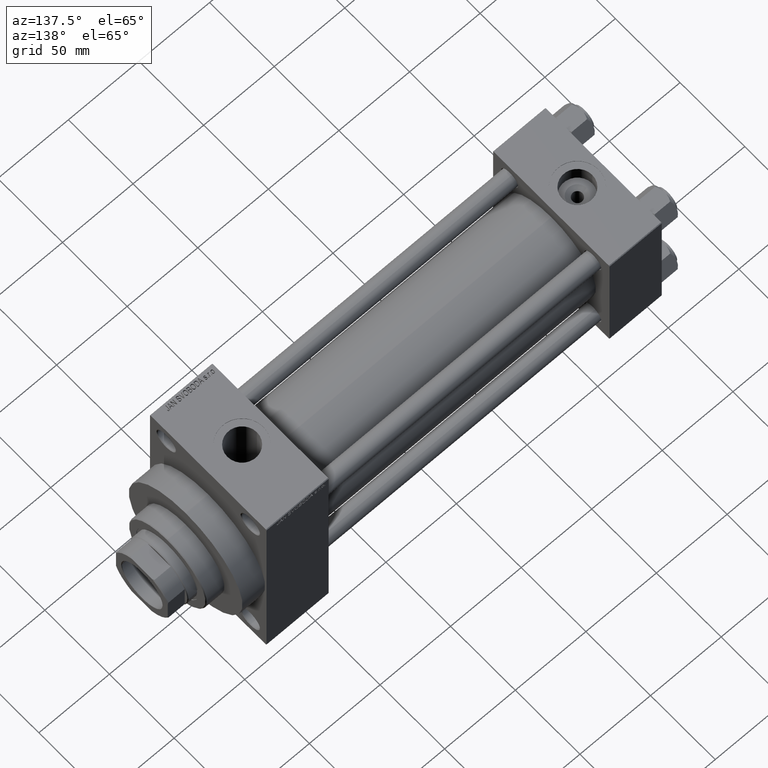
[diagram: clean part render]
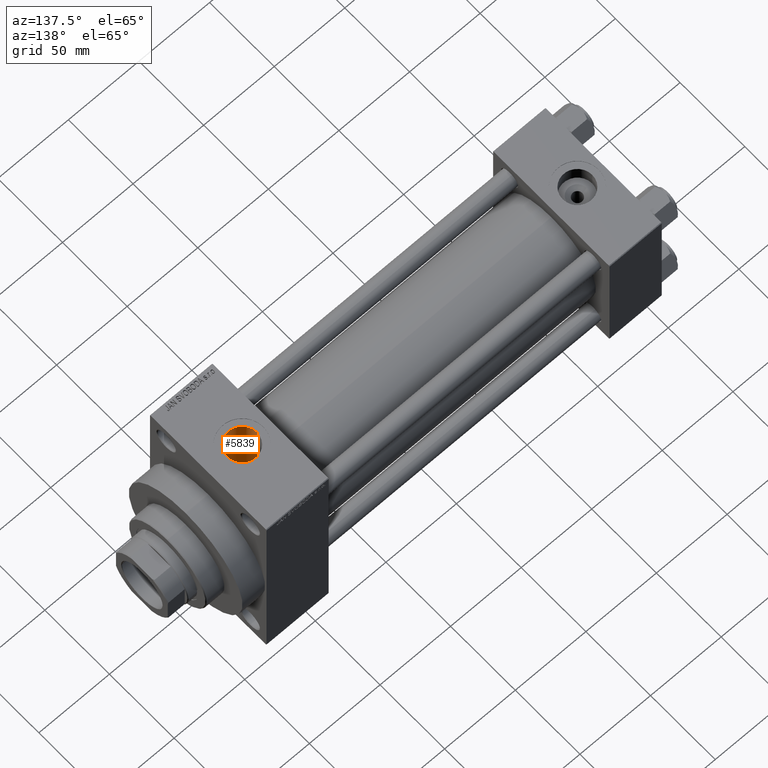
[diagram: same view with one face highlighted and labeled with its STEP entity id]
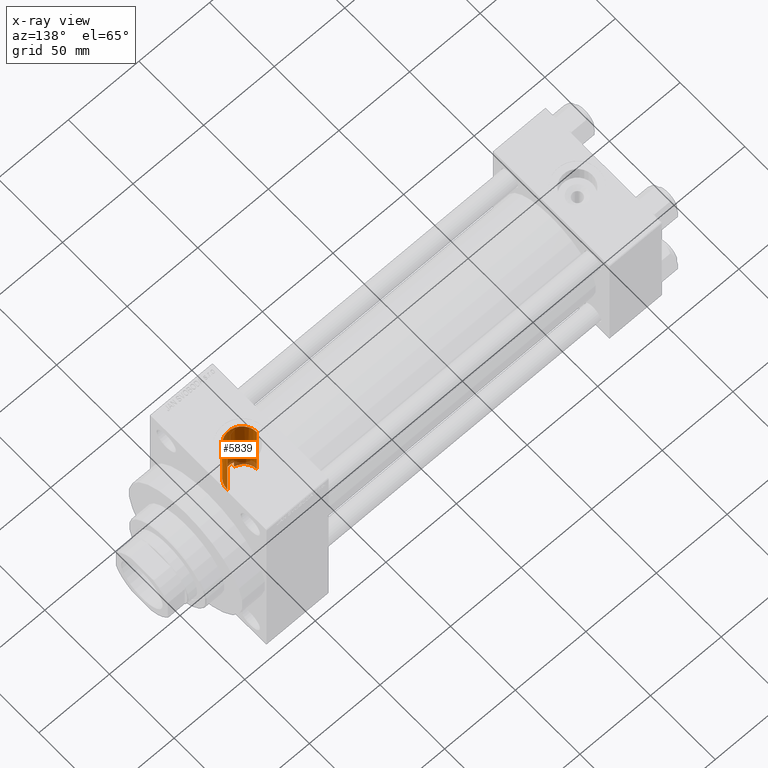
[diagram: x-ray of the same camera — body ghosted, the highlighted face saturated]
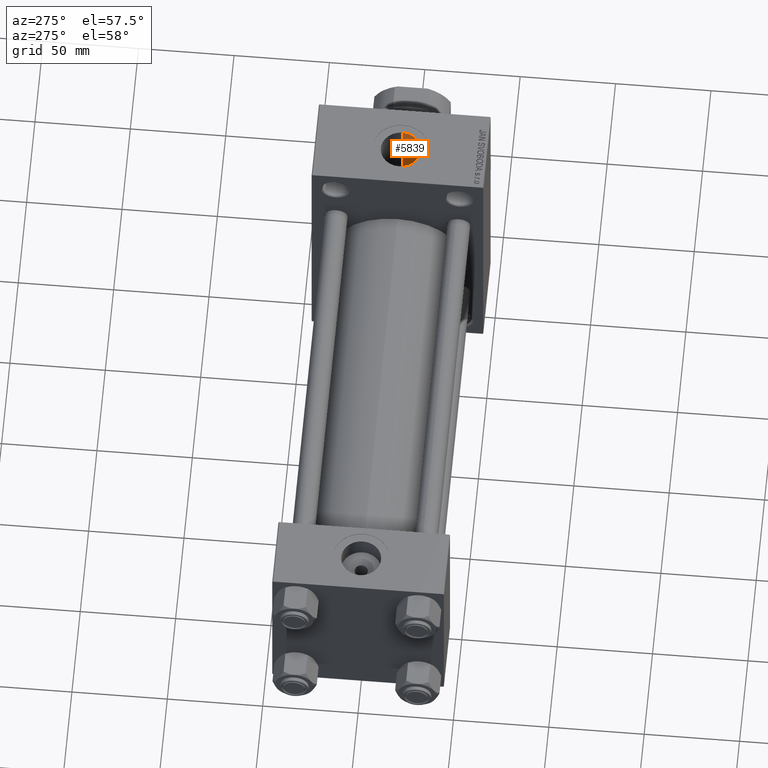
[diagram: same view with one face highlighted and labeled with its STEP entity id]
A machine part, auxiliary view. The second image highlights one B-rep face of the part: STEP entity #5839.
The next image is the same camera in x-ray: the body ghosted, the highlighted face saturated — about 8% of this face is hidden behind the body in this view.
A second angle (auxiliary view) of the same face is appended — the face is thin or edge-on in the first view.
In plain terms, the highlighted cylindrical surface (edge-blend (fillet) strip) has radius 10.48 mm, axis along (0, 0, -1).
Its self-contained STEP definition (entity closure, byte-faithful):
#534 = CARTESIAN_POINT ( 'NONE',  ( 266.4800000000000182, -9.664602758436089169E-15, 70.79999999999996874 ) ) ;
#680 = CARTESIAN_POINT ( 'NONE',  ( 263.6953313842686839, -7.126116182886386596, 29.14312091195550991 ) ) ;
#2608 = CARTESIAN_POINT ( 'NONE',  ( 265.9688766884320898, -3.259248874892654690, 29.82498403132067821 ) ) ;
#2763 = EDGE_CURVE ( 'NONE', #46093, #41955, #40337, .T. ) ;
#2845 = CARTESIAN_POINT ( 'NONE',  ( 266.3561768723853334, -1.659168348792960712, 29.95693324364475174 ) ) ;
#2967 = CARTESIAN_POINT ( 'NONE',  ( 246.2133645239136115, -3.788497290311523713, 24.71686331191870423 ) ) ;
#3067 = CARTESIAN_POINT ( 'NONE',  ( 266.0890390176182905, -2.865498728266686168, 29.86553233084091019 ) ) ;
#3425 = CARTESIAN_POINT ( 'NONE',  ( 245.7506109030364030, -2.203904040410054499, 24.90413656399008602 ) ) ;
#3885 = B_SPLINE_CURVE_WITH_KNOTS ( 'NONE', 3,
 ( #35695, #14279, #39532, #2845, #21665, #3067, #2608, #17382, #31907, #46449, #18300, #680, #12101, #40005, #7352, #40698, #22132, #7579, #33077, #44039, #14985, #37113, #30213, #32826, #4477, #4248, #36873, #21906, #11404, #15684 ),
 .UNSPECIFIED., .F., .F.,
 ( 4, 2, 2, 2, 2, 2, 2, 2, 2, 2, 2, 2, 2, 2, 4 ),
 ( 0.01983178583558416544, 0.02107005794959071823, 0.02230833006359726756, 0.02354660217760382035, 0.02478487429161037314, 0.02726141851962347526, 0.02849969063362997601, 0.02973796274763647329, 0.03097623486164297057, 0.03221450697564947480, 0.03345277908965597208, 0.03469105120366246936, 0.03716759543167530433, 0.03840586754568172528, 0.03964413965968813930 ),
 .UNSPECIFIED. ) ;
#4077 = AXIS2_PLACEMENT_3D ( 'NONE', #15413, #34212, #12074 ) ;
#4248 = CARTESIAN_POINT ( 'NONE',  ( 254.7699339040235316, -10.41578934976506865, 28.13383227326703206 ) ) ;
#4465 = DIRECTION ( 'NONE',  ( -0.000000000000000000, -0.000000000000000000, -1.000000000000000000 ) ) ;
#4477 = CARTESIAN_POINT ( 'NONE',  ( 256.0079132330771472, -10.51264281222109354, 28.09784841831594093 ) ) ;
#4747 = EDGE_CURVE ( 'NONE', #43084, #12675, #43003, .T. ) ;
#5839 = ADVANCED_FACE ( 'NONE', ( #40668 ), #15888, .F. ) ;
#6299 = CARTESIAN_POINT ( 'NONE',  ( 251.7027284824028754, -9.574030923381082303, 23.09567255457321622 ) ) ;
#6899 = CARTESIAN_POINT ( 'NONE',  ( 245.5200000000000102, -1.094803260394251466E-14, 70.79999999999996874 ) ) ;
#6996 = CARTESIAN_POINT ( 'NONE',  ( 245.5634374036091003, -1.103933992171570955, 24.98169420149658393 ) ) ;
#7352 = CARTESIAN_POINT ( 'NONE',  ( 262.4991569451228202, -8.231478667600766741, 28.84970080865382158 ) ) ;
#7579 = CARTESIAN_POINT ( 'NONE',  ( 260.7754301067500364, -9.337894368229061826, 28.51050477243453685 ) ) ;
#9092 = EDGE_LOOP ( 'NONE', ( #47108, #24381, #30425, #44654, #30511, #22309 ) ) ;
#9878 = CARTESIAN_POINT ( 'NONE',  ( 250.7309451898283044, -9.075553538226493799, 23.29606161660609587 ) ) ;
#10111 = CARTESIAN_POINT ( 'NONE',  ( 247.8536174240124694, -6.615275848649956991, 24.11313317637569043 ) ) ;
#11210 = B_SPLINE_CURVE_WITH_KNOTS ( 'NONE', 3,
 ( #25125, #46807, #6299, #9878, #14175, #46343, #14400, #28710, #10111, #21099, #17278, #39432, #2967, #17969, #24431, #3425, #21320, #6996, #38954, #32497 ),
 .UNSPECIFIED., .F., .F.,
 ( 4, 2, 2, 2, 2, 2, 2, 2, 2, 4 ),
 ( 0.01988964932192578694, 0.02154756030224161747, 0.02320547128255744801, 0.02486338226287328201, 0.02652129324318911255, 0.02817920422350494308, 0.02983711520382077709, 0.03066607069397869062, 0.03149502618413660415, 0.03315293716445243816 ),
 .UNSPECIFIED. ) ;
#11404 = CARTESIAN_POINT ( 'NONE',  ( 253.1356366639053590, -10.08955499213374374, 28.25278262901559501 ) ) ;
#12074 = DIRECTION ( 'NONE',  ( -1.000000000000000000, 0.000000000000000000, 0.000000000000000000 ) ) ;
#12101 = CARTESIAN_POINT ( 'NONE',  ( 263.4108071772772632, -7.421314247701563005, 29.06898203862666819 ) ) ;
#12423 = VECTOR ( 'NONE', #19451, 1000.000000000000000 ) ;
#12675 = VERTEX_POINT ( 'NONE', #13300 ) ;
#13300 = CARTESIAN_POINT ( 'NONE',  ( 245.5200000000000102, 3.061579607078841377E-15, 25.00000000000000000 ) ) ;
#14175 = CARTESIAN_POINT ( 'NONE',  ( 250.2686167523512495, -8.790768987372237220, 23.40594614296281506 ) ) ;
#14279 = CARTESIAN_POINT ( 'NONE',  ( 266.4800000000000182, -0.4140493469420027939, 30.00000000000000355 ) ) ;
#14400 = CARTESIAN_POINT ( 'NONE',  ( 248.9710119791482441, -7.792124981740072620, 23.75802442794438818 ) ) ;
#14951 = CARTESIAN_POINT ( 'NONE',  ( 245.5200000000000102, -1.094803260394251466E-14, 93.79999999999996874 ) ) ;
#14985 = CARTESIAN_POINT ( 'NONE',  ( 259.2647576281308375, -9.966984633129863269, 28.29617465522276731 ) ) ;
#15413 = CARTESIAN_POINT ( 'NONE',  ( 256.0000000000000000, -1.094803260394251466E-14, 93.79999999999996874 ) ) ;
#15684 = CARTESIAN_POINT ( 'NONE',  ( 252.7400000000000091, -9.960060240781679397, 28.29836037653065262 ) ) ;
#15888 = CYLINDRICAL_SURFACE ( 'NONE', #4077, 10.47999999999998977 ) ;
#16222 = LINE ( 'NONE', #45294, #30953 ) ;
#16635 = VERTEX_POINT ( 'NONE', #534 ) ;
#17278 = CARTESIAN_POINT ( 'NONE',  ( 246.9226781161778490, -5.266119555344875636, 24.44410166351154601 ) ) ;
#17382 = CARTESIAN_POINT ( 'NONE',  ( 265.6812555715533790, -4.034166111592117687, 29.73008374493930717 ) ) ;
#17969 = CARTESIAN_POINT ( 'NONE',  ( 245.9569663818569438, -3.007160148706855107, 24.81987104649663323 ) ) ;
#18048 = EDGE_CURVE ( 'NONE', #16635, #43084, #27427, .T. ) ;
#18300 = CARTESIAN_POINT ( 'NONE',  ( 264.4977574635255451, -6.188339515081495712, 29.36182159556006610 ) ) ;
#18429 = VECTOR ( 'NONE', #19111, 1000.000000000000000 ) ;
#18883 = CARTESIAN_POINT ( 'NONE',  ( 252.7400000000000091, -9.960060240781679397, 93.79999999999996874 ) ) ;
#19111 = DIRECTION ( 'NONE',  ( -0.000000000000000000, -0.000000000000000000, 1.000000000000000000 ) ) ;
#19451 = DIRECTION ( 'NONE',  ( 0.000000000000000000, 0.000000000000000000, -1.000000000000000000 ) ) ;
#21099 = CARTESIAN_POINT ( 'NONE',  ( 247.2133851667944384, -5.737667069548077592, 24.33689057242903075 ) ) ;
#21320 = CARTESIAN_POINT ( 'NONE',  ( 245.6952564760870246, -1.928778934517576982, 24.92700825772722695 ) ) ;
#21665 = CARTESIAN_POINT ( 'NONE',  ( 266.2826880867322075, -2.065458053724750442, 29.93150493033226667 ) ) ;
#21906 = CARTESIAN_POINT ( 'NONE',  ( 253.5376865130923250, -10.19514556951083151, 28.21465150049998627 ) ) ;
#22132 = CARTESIAN_POINT ( 'NONE',  ( 261.4955340743380248, -8.933090684329188846, 28.63992046840855465 ) ) ;
#22309 = ORIENTED_EDGE ( 'NONE', *, *, #4747, .F. ) ;
#22580 = EDGE_CURVE ( 'NONE', #45777, #41955, #3885, .T. ) ;
#23931 = EDGE_CURVE ( 'NONE', #46093, #12675, #11210, .T. ) ;
#24381 = ORIENTED_EDGE ( 'NONE', *, *, #40374, .T. ) ;
#24431 = CARTESIAN_POINT ( 'NONE',  ( 245.8813829677837646, -2.742400269040752292, 24.85060264423317022 ) ) ;
#25125 = CARTESIAN_POINT ( 'NONE',  ( 252.7400000000000091, -9.960060240781679397, 22.93026820601974691 ) ) ;
#25409 = CARTESIAN_POINT ( 'NONE',  ( 252.7400000000000091, -9.960060240781679397, 22.93026820601974691 ) ) ;
#26399 = CARTESIAN_POINT ( 'NONE',  ( 256.0000000000000000, -1.094803260394251466E-14, 70.79999999999996874 ) ) ;
#27427 = CIRCLE ( 'NONE', #38055, 10.47999999999998977 ) ;
#28710 = CARTESIAN_POINT ( 'NONE',  ( 248.2050283705145262, -7.025831027277298801, 23.99580452550002718 ) ) ;
#29728 = DIRECTION ( 'NONE',  ( 1.000000000000000000, 0.000000000000000000, 0.000000000000000000 ) ) ;
#30213 = CARTESIAN_POINT ( 'NONE',  ( 258.0676511321232169, -10.28246626870992309, 28.18289933756998522 ) ) ;
#30425 = ORIENTED_EDGE ( 'NONE', *, *, #22580, .T. ) ;
#30511 = ORIENTED_EDGE ( 'NONE', *, *, #23931, .T. ) ;
#30953 = VECTOR ( 'NONE', #38376, 1000.000000000000000 ) ;
#31907 = CARTESIAN_POINT ( 'NONE',  ( 265.5132943898858571, -4.415432476193867473, 29.67559266697256604 ) ) ;
#32497 = CARTESIAN_POINT ( 'NONE',  ( 245.5200000000000102, 3.061579607078841377E-15, 25.00000000000000000 ) ) ;
#32826 = CARTESIAN_POINT ( 'NONE',  ( 256.8323486893805807, -10.48013219117957462, 28.11025684355166376 ) ) ;
#33077 = CARTESIAN_POINT ( 'NONE',  ( 260.4065122839483593, -9.517374506241282006, 28.45078537450225298 ) ) ;
#34212 = DIRECTION ( 'NONE',  ( 0.000000000000000000, 0.000000000000000000, -1.000000000000000000 ) ) ;
#35695 = CARTESIAN_POINT ( 'NONE',  ( 266.4800000000000182, 3.673940397618681979E-15, 30.00000000000000000 ) ) ;
#36187 = CARTESIAN_POINT ( 'NONE',  ( 252.7400000000000091, -9.960060240781679397, 28.29836037653065262 ) ) ;
#36873 = CARTESIAN_POINT ( 'NONE',  ( 254.3547903624769901, -10.35843936797068920, 28.15511119385355698 ) ) ;
#37113 = CARTESIAN_POINT ( 'NONE',  ( 258.4739236950475743, -10.19211099814792476, 28.21586709986688390 ) ) ;
#38055 = AXIS2_PLACEMENT_3D ( 'NONE', #26399, #4465, #29728 ) ;
#38376 = DIRECTION ( 'NONE',  ( 0.000000000000000000, 0.000000000000000000, -1.000000000000000000 ) ) ;
#38954 = CARTESIAN_POINT ( 'NONE',  ( 245.5200000000000102, -0.5526487399564664615, 25.00000000000000000 ) ) ;
#39432 = CARTESIAN_POINT ( 'NONE',  ( 246.4236355937512144, -4.292206019337004186, 24.63377942571624857 ) ) ;
#39532 = CARTESIAN_POINT ( 'NONE',  ( 266.4550640607020568, -0.8335913317594031424, 29.99126230196788967 ) ) ;
#40005 = CARTESIAN_POINT ( 'NONE',  ( 262.8130789427702894, -7.973576581528562635, 28.92237366509942831 ) ) ;
#40337 = LINE ( 'NONE', #18883, #18429 ) ;
#40374 = EDGE_CURVE ( 'NONE', #16635, #45777, #16222, .T. ) ;
#40668 = FACE_OUTER_BOUND ( 'NONE', #9092, .T. ) ;
#40698 = CARTESIAN_POINT ( 'NONE',  ( 261.8407164529725151, -8.711045480795165830, 28.70853818005238622 ) ) ;
#41955 = VERTEX_POINT ( 'NONE', #36187 ) ;
#43003 = LINE ( 'NONE', #14951, #12423 ) ;
#43084 = VERTEX_POINT ( 'NONE', #6899 ) ;
#44039 = CARTESIAN_POINT ( 'NONE',  ( 259.6511764337021191, -9.831921411942634137, 28.34362233849842383 ) ) ;
#44654 = ORIENTED_EDGE ( 'NONE', *, *, #2763, .F. ) ;
#45294 = CARTESIAN_POINT ( 'NONE',  ( 266.4800000000000182, -9.664602758436089169E-15, 93.79999999999996874 ) ) ;
#45777 = VERTEX_POINT ( 'NONE', #46445 ) ;
#46093 = VERTEX_POINT ( 'NONE', #25409 ) ;
#46343 = CARTESIAN_POINT ( 'NONE',  ( 249.3891897638273178, -8.150065112751518015, 23.63667431967813926 ) ) ;
#46445 = CARTESIAN_POINT ( 'NONE',  ( 266.4800000000000182, 3.673940397618681979E-15, 30.00000000000000000 ) ) ;
#46449 = CARTESIAN_POINT ( 'NONE',  ( 264.9516850616486181, -5.511024492678219033, 29.49874548845619771 ) ) ;
#46807 = CARTESIAN_POINT ( 'NONE',  ( 252.2166163324468471, -9.788752968036753543, 23.00467774806669041 ) ) ;
#47108 = ORIENTED_EDGE ( 'NONE', *, *, #18048, .F. ) ;